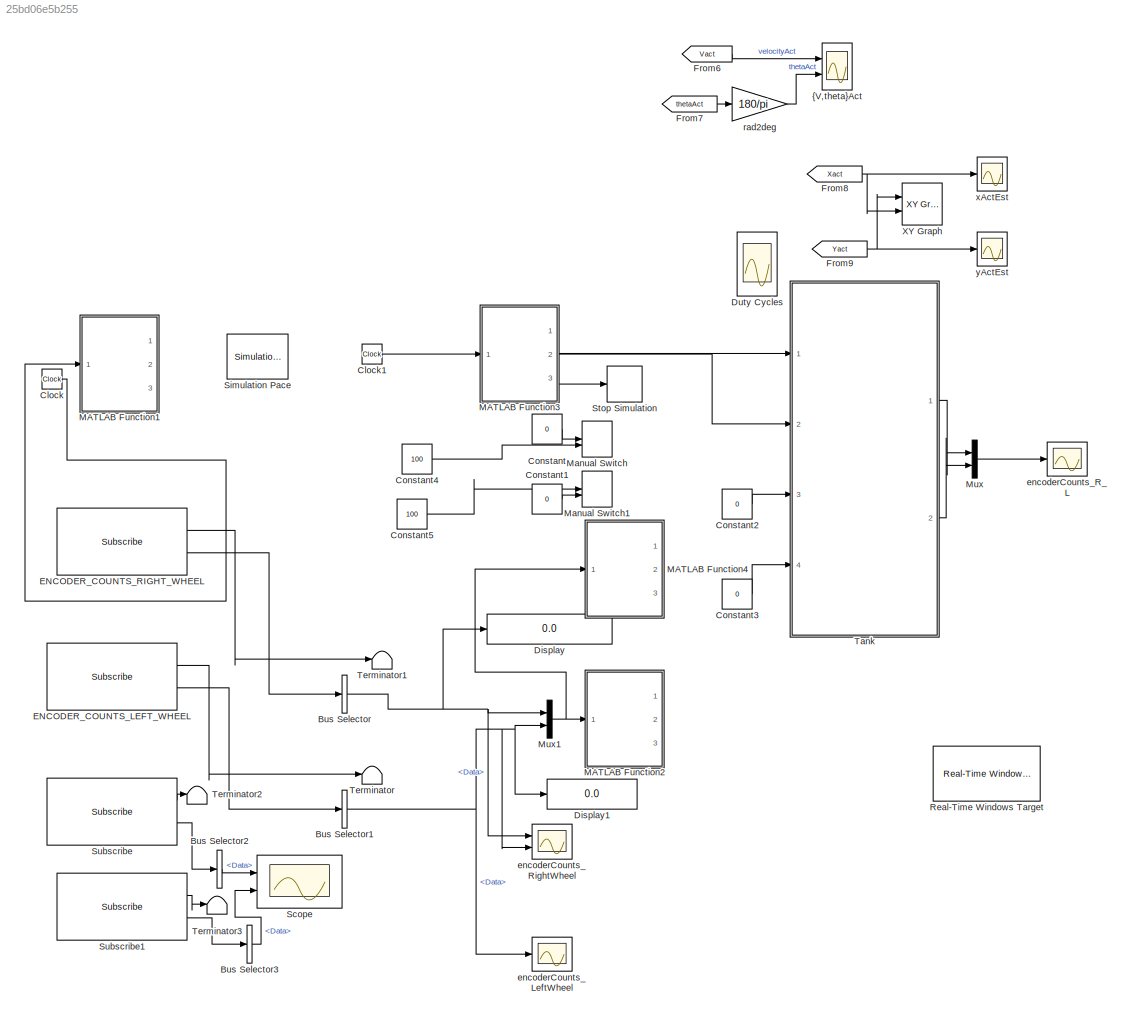
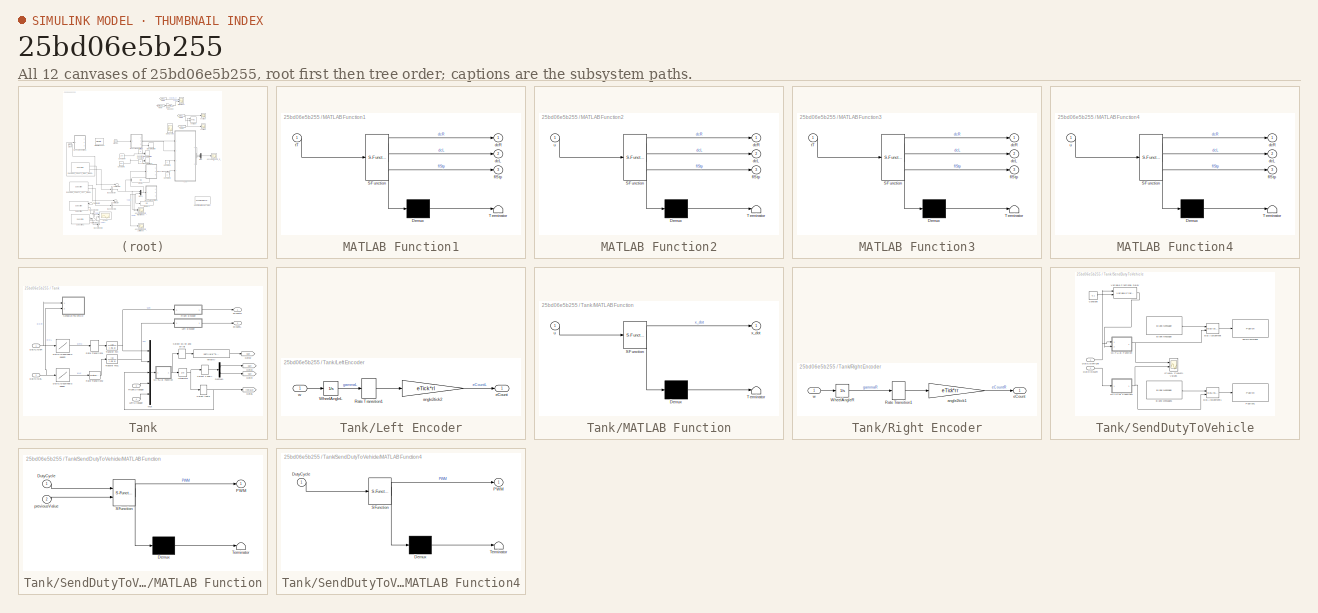
[diagram: thumbnail index - all 12 canvases of the model, root first then tree order]
MODEL slx_25bd06e5b255
KIND model
CONFIG AbsTol = auto
CONFIG EnableMultiTasking = on
CONFIG FixedStep = 0.1
CONFIG InitFcn = parameterVehicle
CONFIG MaxStep = auto
CONFIG MinStep = auto
CONFIG PreLoadFcn = RTWConfigurationCB('preloadfcn', bdroot);
CONFIG RelTol = 1e-3
CONFIG SampleTimeConstraint = Unconstrained
CONFIG Solver = ode45
CONFIG SolverName = ode45
CONFIG StartTime = 0.0
CONFIG StopFcn = myStopFcnExperiment(xAct,yAct)
CONFIG StopTime = inf
BLOCK [BusSelector] Bus Selector
  OutputAsBus = off
  OutputSignals = Data
  Ports = [1, 1]
BLOCK [BusSelector] Bus Selector1
  OutputAsBus = off
  OutputSignals = Data
  Ports = [1, 1]
BLOCK [BusSelector] Bus Selector2
  OutputAsBus = off
  OutputSignals = Data
  Ports = [1, 1]
BLOCK [BusSelector] Bus Selector3
  OutputAsBus = off
  OutputSignals = Data
  Ports = [1, 1]
BLOCK [Clock] Clock
  DisplayTime = on
BLOCK [Clock] Clock1
BLOCK [Constant] Constant
  Value = 0
BLOCK [Constant] Constant1
  Value = 0
BLOCK [Constant] Constant2
  Value = 0
BLOCK [Constant] Constant3
  Value = 0
BLOCK [Constant] Constant4
  Value = 100
BLOCK [Constant] Constant5
  Value = 100
BLOCK [Display] Display
  Decimation = 1
  Format = long
  Ports = [1]
BLOCK [Display] Display1
  Decimation = 1
  Format = long
  Ports = [1]
BLOCK [Scope] Duty Cycles
  Floating = off
  NumInputPorts = 2
  Ports = [2]
  ScopeSpecificationString = Simulink.scopes.TimeScopeBlockCfg('CurrentConfiguration', extmgr.ConfigurationSet(extmgr.Configuration('Core','General UI',true),extmgr.Configuration('Core','Source UI',true),extmgr.Configuration('Sources','WiredSimulink',true,'DataLoggingVariableName','ScopeData2','DataLoggingSaveFormat','StructureWithTime','DataLoggingDecimation','1','DataLoggingDecimateData',true),extmgr.Configuration('Visuals'...<+2359ch>
BLOCK [Reference] ENCODER_COUNTS_LEFT_WHEEL  REF=robotlib/Subscribe
  Ports = [0, 2]
  SourceBlock = robotlib/Subscribe
  SourceLibraryInfo = This block requires Robotics System Toolbox
  SourceProductBaseCode = RO
  SourceProductName = Robotics System Toolbox
  SourceType = ROS Subscribe
BLOCK [Reference] ENCODER_COUNTS_RIGHT_WHEEL  REF=robotlib/Subscribe
  Ports = [0, 2]
  SourceBlock = robotlib/Subscribe
  SourceLibraryInfo = This block requires Robotics System Toolbox
  SourceProductBaseCode = RO
  SourceProductName = Robotics System Toolbox
  SourceType = ROS Subscribe
BLOCK [From] From6
  GotoTag = Vact
  TagVisibility = global
BLOCK [From] From7
  GotoTag = thetaAct
  TagVisibility = global
BLOCK [From] From8
  GotoTag = Xact
  TagVisibility = global
BLOCK [From] From9
  GotoTag = Yact
  TagVisibility = global
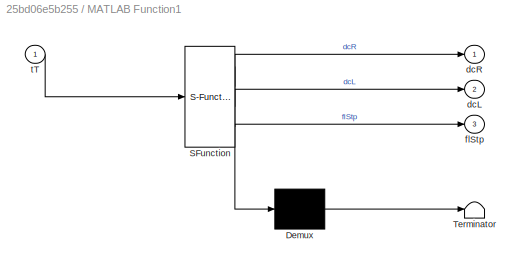
BLOCK [SubSystem] MATLAB Function1
  ErrorFcn = Stateflow.Translate.translate
  PermitHierarchicalResolution = ExplicitOnly
  Ports = [1, 3]
  RequestExecContextInheritance = off
  SFBlockType = MATLAB Function
  TreatAsAtomicUnit = on
BLOCK [Demux] MATLAB Function1/ Demux 
  Outputs = 1
  Ports = [1, 1]
BLOCK [S-Function] MATLAB Function1/ SFunction 
  EnableBusSupport = on
  FunctionName = sf_sfun
  PortCounts = [1 4]
  Ports = [1, 4]
  SFcnIsStateOwnerBlock = off
  SFunctionDeploymentMode = off
  Tag = Stateflow S-Function temp_vehicle 3
BLOCK [Terminator] MATLAB Function1/ Terminator 
BLOCK [Outport] MATLAB Function1/dcL
  IconDisplay = Port number
  Port = 2
BLOCK [Outport] MATLAB Function1/dcR
  IconDisplay = Port number
BLOCK [Outport] MATLAB Function1/flStp
  IconDisplay = Port number
  Port = 3
BLOCK [Inport] MATLAB Function1/tT
  IconDisplay = Port number
BLOCK [SubSystem] MATLAB Function2
  ErrorFcn = Stateflow.Translate.translate
  PermitHierarchicalResolution = ExplicitOnly
  Ports = [1, 3]
  RequestExecContextInheritance = off
  SFBlockType = MATLAB Function
  TreatAsAtomicUnit = on
BLOCK [Demux] MATLAB Function2/ Demux 
  Outputs = 1
  Ports = [1, 1]
BLOCK [S-Function] MATLAB Function2/ SFunction 
  EnableBusSupport = on
  FunctionName = sf_sfun
  PortCounts = [1 4]
  Ports = [1, 4]
  SFcnIsStateOwnerBlock = off
  SFunctionDeploymentMode = off
  Tag = Stateflow S-Function temp_vehicle 4
BLOCK [Terminator] MATLAB Function2/ Terminator 
BLOCK [Outport] MATLAB Function2/dcL
  IconDisplay = Port number
  Port = 2
BLOCK [Outport] MATLAB Function2/dcR
  IconDisplay = Port number
BLOCK [Outport] MATLAB Function2/flStp
  IconDisplay = Port number
  Port = 3
BLOCK [Inport] MATLAB Function2/u
  IconDisplay = Port number
BLOCK [SubSystem] MATLAB Function3
  ErrorFcn = Stateflow.Translate.translate
  PermitHierarchicalResolution = ExplicitOnly
  Ports = [1, 3]
  RequestExecContextInheritance = off
  SFBlockType = MATLAB Function
  TreatAsAtomicUnit = on
BLOCK [Demux] MATLAB Function3/ Demux 
  Outputs = 1
  Ports = [1, 1]
BLOCK [S-Function] MATLAB Function3/ SFunction 
  EnableBusSupport = on
  FunctionName = sf_sfun
  PortCounts = [1 4]
  Ports = [1, 4]
  SFcnIsStateOwnerBlock = off
  SFunctionDeploymentMode = off
  Tag = Stateflow S-Function temp_vehicle 2
BLOCK [Terminator] MATLAB Function3/ Terminator 
BLOCK [Outport] MATLAB Function3/dcL
  IconDisplay = Port number
  Port = 2
BLOCK [Outport] MATLAB Function3/dcR
  IconDisplay = Port number
BLOCK [Outport] MATLAB Function3/flStp
  IconDisplay = Port number
  Port = 3
BLOCK [Inport] MATLAB Function3/tT
  IconDisplay = Port number
BLOCK [SubSystem] MATLAB Function4
  ErrorFcn = Stateflow.Translate.translate
  PermitHierarchicalResolution = ExplicitOnly
  Ports = [1, 3]
  RequestExecContextInheritance = off
  SFBlockType = MATLAB Function
  TreatAsAtomicUnit = on
BLOCK [Demux] MATLAB Function4/ Demux 
  Outputs = 1
  Ports = [1, 1]
BLOCK [S-Function] MATLAB Function4/ SFunction 
  EnableBusSupport = on
  FunctionName = sf_sfun
  PortCounts = [1 4]
  Ports = [1, 4]
  SFcnIsStateOwnerBlock = off
  SFunctionDeploymentMode = off
  Tag = Stateflow S-Function temp_vehicle 5
BLOCK [Terminator] MATLAB Function4/ Terminator 
BLOCK [Outport] MATLAB Function4/dcL
  IconDisplay = Port number
  Port = 2
BLOCK [Outport] MATLAB Function4/dcR
  IconDisplay = Port number
BLOCK [Outport] MATLAB Function4/flStp
  IconDisplay = Port number
  Port = 3
BLOCK [Inport] MATLAB Function4/u
  IconDisplay = Port number
BLOCK [ManualSwitch] Manual Switch
  CurrentSetting = 0
BLOCK [ManualSwitch] Manual Switch1
BLOCK [Mux] Mux
  DisplayOption = bar
  Inputs = 2
  Ports = [2, 1]
BLOCK [Mux] Mux1
  DisplayOption = bar
  Inputs = 2
  Ports = [2, 1]
BLOCK [Reference] Real-Time Windows Target  REF=rtwlib/Real-Time Windows Target
  Ports = []
  SourceBlock = rtwlib/Real-Time Windows Target
  SourceProductBaseCode = RT
  SourceProductName = Simulink Coder
  SourceType = Real-Time Windows Target
BLOCK [Scope] Scope
  Floating = off
  NumInputPorts = 2
  Ports = [2]
  ScopeSpecificationString = Simulink.scopes.TimeScopeBlockCfg('CurrentConfiguration', extmgr.ConfigurationSet(extmgr.Configuration('Core','General UI',true),extmgr.Configuration('Core','Source UI',true),extmgr.Configuration('Sources','WiredSimulink',true,'DataLoggingVariableName','ScopeData1'),extmgr.Configuration('Visuals','Time Domain',true,'InputProcessing','FrameProcessing','SerializedDisplays',{struct('MinYLimReal','-31...<+1433ch>
BLOCK [Reference] Simulation Pace  REF=aerolibanimutils/Simulation Pace
  AttributesFormatString = %<SleepMode>\n%<SimulationPace> sec/sec
  Ports = []
  SourceBlock = aerolibanimutils/Simulation Pace
  SourceProductBaseCode = AE
  SourceProductName = Aerospace Blockset
  SourceType = Simulation Pace
BLOCK [Stop] Stop Simulation
BLOCK [Reference] Subscribe  REF=robotlib/Subscribe
  Ports = [0, 2]
  SourceBlock = robotlib/Subscribe
  SourceLibraryInfo = This block requires Robotics System Toolbox
  SourceProductBaseCode = RO
  SourceProductName = Robotics System Toolbox
  SourceType = ROS Subscribe
BLOCK [Reference] Subscribe1  REF=robotlib/Subscribe
  Ports = [0, 2]
  SourceBlock = robotlib/Subscribe
  SourceLibraryInfo = This block requires Robotics System Toolbox
  SourceProductBaseCode = RO
  SourceProductName = Robotics System Toolbox
  SourceType = ROS Subscribe
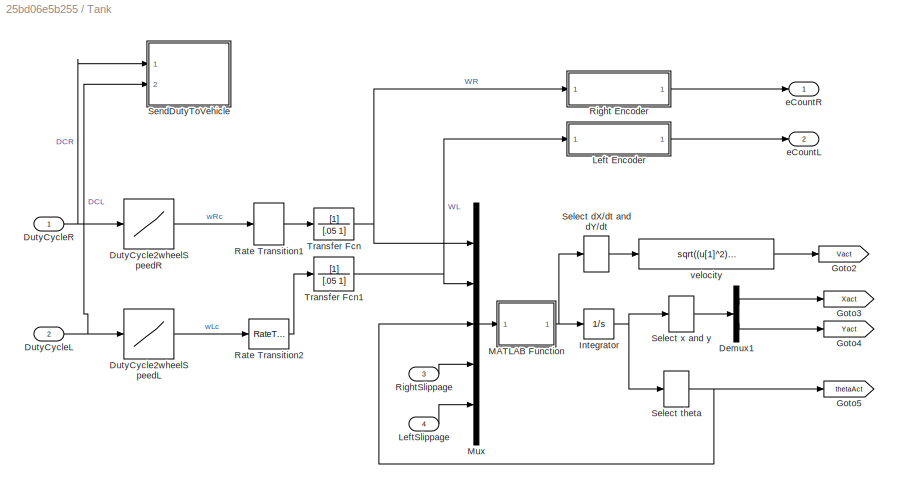
BLOCK [SubSystem] Tank
  Ports = [4, 2]
  RequestExecContextInheritance = off
BLOCK [Demux] Tank/Demux1
  DisplayOption = bar
  Outputs = 2
  Ports = [1, 2]
BLOCK [Lookup] Tank/DutyCycle2wheelSpeedL
  InputValues = dcArray
  LookUpMeth = Interpolation-Use End Values
  SaturateOnIntegerOverflow = off
  Table = wArray
BLOCK [Lookup] Tank/DutyCycle2wheelSpeedR
  InputValues = dcArray
  LookUpMeth = Interpolation-Use End Values
  SaturateOnIntegerOverflow = off
  Table = wArray
BLOCK [Inport] Tank/DutyCycleL
  IconDisplay = Port number
  Port = 2
BLOCK [Inport] Tank/DutyCycleR
  IconDisplay = Port number
BLOCK [Goto] Tank/Goto2
  GotoTag = Vact
  TagVisibility = global
BLOCK [Goto] Tank/Goto3
  GotoTag = Xact
  TagVisibility = global
BLOCK [Goto] Tank/Goto4
  GotoTag = Yact
  TagVisibility = global
BLOCK [Goto] Tank/Goto5
  GotoTag = thetaAct
  TagVisibility = global
BLOCK [Integrator] Tank/Integrator
  InitialCondition = [xIC; yIC ; thetaIC]
  Ports = [1, 1]
BLOCK [SubSystem] Tank/Left Encoder
  Ports = [1, 1]
  RequestExecContextInheritance = off
BLOCK [RateTransition] Tank/Left Encoder/Rate Transition1
BLOCK [Integrator] Tank/Left Encoder/WheelAngleL
  Ports = [1, 1]
BLOCK [Gain] Tank/Left Encoder/angle2tick2
  Gain = eTick*rl
  OutDataTypeStr = int16
  ParamDataTypeStr = Inherit: Inherit via internal rule
  SampleTime = TsampleEncoder
  SaturateOnIntegerOverflow = off
BLOCK [Outport] Tank/Left Encoder/eCount
  IconDisplay = Port number
BLOCK [Inport] Tank/Left Encoder/w
  IconDisplay = Port number
BLOCK [Inport] Tank/LeftSlippage
  IconDisplay = Port number
  Port = 4
BLOCK [SubSystem] Tank/MATLAB Function
  ErrorFcn = Stateflow.Translate.translate
  PermitHierarchicalResolution = ExplicitOnly
  Ports = [1, 1]
  RequestExecContextInheritance = off
  SFBlockType = MATLAB Function
  TreatAsAtomicUnit = on
BLOCK [Demux] Tank/MATLAB Function/ Demux 
  Outputs = 1
  Ports = [1, 1]
BLOCK [S-Function] Tank/MATLAB Function/ SFunction 
  EnableBusSupport = on
  FunctionName = sf_sfun
  Parameters = b,rl,rr
  PortCounts = [1 2]
  Ports = [1, 2]
  SFcnIsStateOwnerBlock = off
  SFunctionDeploymentMode = off
  Tag = Stateflow S-Function temp_vehicle 1
BLOCK [Terminator] Tank/MATLAB Function/ Terminator 
BLOCK [Inport] Tank/MATLAB Function/u
  IconDisplay = Port number
BLOCK [Outport] Tank/MATLAB Function/x_dot
  IconDisplay = Port number
BLOCK [Mux] Tank/Mux
  DisplayOption = bar
  Inputs = 5
  Ports = [5, 1]
BLOCK [RateTransition] Tank/Rate Transition1
BLOCK [RateTransition] Tank/Rate Transition2
BLOCK [SubSystem] Tank/Right Encoder
  Ports = [1, 1]
  RequestExecContextInheritance = off
BLOCK [RateTransition] Tank/Right Encoder/Rate Transition1
BLOCK [Integrator] Tank/Right Encoder/WheelAngleR
  Ports = [1, 1]
BLOCK [Gain] Tank/Right Encoder/angle2tick1
  Gain = eTick*rr
  OutDataTypeStr = int16
  ParamDataTypeStr = Inherit: Inherit via internal rule
  SampleTime = TsampleEncoder
  SaturateOnIntegerOverflow = off
BLOCK [Outport] Tank/Right Encoder/eCount
  IconDisplay = Port number
BLOCK [Inport] Tank/Right Encoder/w
  IconDisplay = Port number
BLOCK [Inport] Tank/RightSlippage
  IconDisplay = Port number
  Port = 3
BLOCK [Selector] Tank/Select dX//dt and dY//dt
  IndexOptions = Index vector (dialog)
  Indices = [1 2]
  InputPortWidth = 3
  OutputSizes = 1
  Ports = [1, 1]
BLOCK [Selector] Tank/Select theta
  IndexOptions = Index vector (dialog)
  Indices = 3
  InputPortWidth = 3
  OutputSizes = 1
  Ports = [1, 1]
BLOCK [Selector] Tank/Select x and y
  IndexOptions = Index vector (dialog)
  Indices = [1 2]
  InputPortWidth = 3
  OutputSizes = 1
  Ports = [1, 1]
BLOCK [SubSystem] Tank/SendDutyToVehicle
  Ports = [2]
  RequestExecContextInheritance = off
BLOCK [Reference] Tank/SendDutyToVehicle/Blank Message  REF=robotlib/Blank Message
  Ports = [0, 1]
  SourceBlock = robotlib/Blank Message
  SourceLibraryInfo = This block requires Robotics System Toolbox
  SourceProductBaseCode = RO
  SourceProductName = Robotics System Toolbox
  SourceType = ROS Blank Message
BLOCK [Reference] Tank/SendDutyToVehicle/Blank Message1  REF=robotlib/Blank Message
  Ports = [0, 1]
  SourceBlock = robotlib/Blank Message
  SourceLibraryInfo = This block requires Robotics System Toolbox
  SourceProductBaseCode = RO
  SourceProductName = Robotics System Toolbox
  SourceType = ROS Blank Message
BLOCK [BusAssignment] Tank/SendDutyToVehicle/Bus Assignment
  AssignedSignals = Data
  Ports = [2, 1]
BLOCK [BusAssignment] Tank/SendDutyToVehicle/Bus Assignment1
  AssignedSignals = Data
  Ports = [2, 1]
BLOCK [Constant] Tank/SendDutyToVehicle/Constant
  Value = 0.1
BLOCK [Inport] Tank/SendDutyToVehicle/DutyCycleLeft
  IconDisplay = Port number
  Port = 2
BLOCK [Inport] Tank/SendDutyToVehicle/DutyCycleRight
  IconDisplay = Port number
BLOCK [SubSystem] Tank/SendDutyToVehicle/MATLAB Function
  ErrorFcn = Stateflow.Translate.translate
  PermitHierarchicalResolution = ExplicitOnly
  Ports = [2, 1]
  RequestExecContextInheritance = off
  SFBlockType = MATLAB Function
  TreatAsAtomicUnit = on
BLOCK [Demux] Tank/SendDutyToVehicle/MATLAB Function/ Demux 
  Outputs = 1
  Ports = [1, 1]
BLOCK [S-Function] Tank/SendDutyToVehicle/MATLAB Function/ SFunction 
  EnableBusSupport = on
  FunctionName = sf_sfun
  PortCounts = [2 2]
  Ports = [2, 2]
  SFcnIsStateOwnerBlock = off
  SFunctionDeploymentMode = off
  Tag = Stateflow S-Function temp_vehicle 7
BLOCK [Terminator] Tank/SendDutyToVehicle/MATLAB Function/ Terminator 
BLOCK [Inport] Tank/SendDutyToVehicle/MATLAB Function/DutyCycle
  IconDisplay = Port number
BLOCK [Outport] Tank/SendDutyToVehicle/MATLAB Function/PWM
  IconDisplay = Port number
BLOCK [Inport] Tank/SendDutyToVehicle/MATLAB Function/previousValue
  IconDisplay = Port number
  Port = 2
BLOCK [SubSystem] Tank/SendDutyToVehicle/MATLAB Function4
  ErrorFcn = Stateflow.Translate.translate
  PermitHierarchicalResolution = ExplicitOnly
  Ports = [1, 1]
  RequestExecContextInheritance = off
  SFBlockType = MATLAB Function
  TreatAsAtomicUnit = on
BLOCK [Demux] Tank/SendDutyToVehicle/MATLAB Function4/ Demux 
  Outputs = 1
  Ports = [1, 1]
BLOCK [S-Function] Tank/SendDutyToVehicle/MATLAB Function4/ SFunction 
  EnableBusSupport = on
  FunctionName = sf_sfun
  PortCounts = [1 2]
  Ports = [1, 2]
  SFcnIsStateOwnerBlock = off
  SFunctionDeploymentMode = off
  Tag = Stateflow S-Function temp_vehicle 8
BLOCK [Terminator] Tank/SendDutyToVehicle/MATLAB Function4/ Terminator 
BLOCK [Inport] Tank/SendDutyToVehicle/MATLAB Function4/DutyCycle
  IconDisplay = Port number
BLOCK [Outport] Tank/SendDutyToVehicle/MATLAB Function4/PWM
  IconDisplay = Port number
BLOCK [Reference] Tank/SendDutyToVehicle/Publish1  REF=robotlib/Publish
  Ports = [1]
  SourceBlock = robotlib/Publish
  SourceLibraryInfo = This block requires Robotics System Toolbox
  SourceProductBaseCode = RO
  SourceProductName = Robotics System Toolbox
  SourceType = ROS Publish
BLOCK [Reference] Tank/SendDutyToVehicle/Variable Fractional Delay  REF=dspsigops/Variable
Fractional Delay
  Ports = [2, 1]
  SourceBlock = dspsigops/Variable\nFractional Delay
  SourceProductBaseCode = DS
  SourceProductName = DSP System Toolbox
  SourceType = Variable Fractional Delay
  UserDataPersistent = on
BLOCK [Reference] Tank/SendDutyToVehicle/pwmCommand  REF=robotlib/Publish
  Ports = [1]
  SourceBlock = robotlib/Publish
  SourceLibraryInfo = This block requires Robotics System Toolbox
  SourceProductBaseCode = RO
  SourceProductName = Robotics System Toolbox
  SourceType = ROS Publish
BLOCK [Scope] Tank/SendDutyToVehicle/{PWML, PWMR} Values
  Floating = off
  NumInputPorts = 2
  Ports = [2]
  ScopeSpecificationString = Simulink.scopes.TimeScopeBlockCfg('CurrentConfiguration', extmgr.ConfigurationSet(extmgr.Configuration('Core','General UI',true),extmgr.Configuration('Core','Source UI',true),extmgr.Configuration('Sources','WiredSimulink',true,'DataLoggingVariableName','ScopeData3','DataLoggingSaveFormat','StructureWithTime','DataLoggingDecimation','1','DataLoggingDecimateData',true),extmgr.Configuration('Visuals'...<+2320ch>
BLOCK [TransferFcn] Tank/Transfer Fcn
  Denominator = [.05 1]
BLOCK [TransferFcn] Tank/Transfer Fcn1
  Denominator = [.05 1]
BLOCK [Outport] Tank/eCountL
  IconDisplay = Port number
  Port = 2
BLOCK [Outport] Tank/eCountR
  IconDisplay = Port number
BLOCK [Fcn] Tank/velocity
  Expr = sqrt((u[1]^2)+(u[2]^2))
BLOCK [Terminator] Terminator
BLOCK [Terminator] Terminator1
BLOCK [Terminator] Terminator2
BLOCK [Terminator] Terminator3
BLOCK [Reference] XY Graph  REF=simulink/Sinks/XY Graph
  Ports = [2]
  SourceBlock = simulink/Sinks/XY Graph
  SourceProductBaseCode = SL
  SourceProductName = Simulink
  SourceType = XY scope.
BLOCK [Scope] encoderCounts_LeftWheel
  Floating = off
  NumInputPorts = 1
  Ports = [1]
  ScopeSpecificationString = Simulink.scopes.TimeScopeBlockCfg('CurrentConfiguration', extmgr.ConfigurationSet(extmgr.Configuration('Core','General UI',true),extmgr.Configuration('Core','Source UI',true),extmgr.Configuration('Sources','WiredSimulink',true,'DataLogging',true,'DataLoggingVariableName','ScopeData1','DataLoggingSaveFormat','StructureWithTime','DataLoggingDecimation','1','DataLoggingDecimateData',true),extmgr.Conf...<+1758ch>
BLOCK [Scope] encoderCounts_R_L
  Floating = off
  NumInputPorts = 1
  Ports = [1]
  ScopeSpecificationString = Simulink.scopes.TimeScopeBlockCfg('CurrentConfiguration', extmgr.ConfigurationSet(extmgr.Configuration('Core','General UI',true),extmgr.Configuration('Core','Source UI',true),extmgr.Configuration('Sources','WiredSimulink',true,'DataLogging',true,'DataLoggingVariableName','eCountsRL','DataLoggingSaveFormat','StructureWithTime','DataLoggingDecimation','1','DataLoggingDecimateData',true),extmgr.Confi...<+1792ch>
BLOCK [Scope] encoderCounts_RightWheel
  Floating = off
  NumInputPorts = 2
  Ports = [2]
  ScopeSpecificationString = Simulink.scopes.TimeScopeBlockCfg('CurrentConfiguration', extmgr.ConfigurationSet(extmgr.Configuration('Core','General UI',true),extmgr.Configuration('Core','Source UI',true),extmgr.Configuration('Sources','WiredSimulink',true,'DataLogging',true,'DataLoggingVariableName','ScopeData2','DataLoggingSaveFormat','StructureWithTime','DataLoggingDecimation','1','DataLoggingDecimateData',true),extmgr.Conf...<+2146ch>
BLOCK [Gain] rad2deg
  Gain = 180/pi
  OutDataTypeStr = Inherit: Inherit via internal rule
  ParamDataTypeStr = Inherit: Inherit via internal rule
  SaturateOnIntegerOverflow = off
BLOCK [Scope] xActEst
  Floating = off
  NumInputPorts = 1
  Ports = [1]
  ScopeSpecificationString = Simulink.scopes.TimeScopeBlockCfg('CurrentConfiguration', extmgr.ConfigurationSet(extmgr.Configuration('Core','General UI',true),extmgr.Configuration('Core','Source UI',true),extmgr.Configuration('Sources','WiredSimulink',true,'DataLogging',true,'DataLoggingVariableName','xAct','DataLoggingSaveFormat','StructureWithTime','DataLoggingDecimation','1','DataLoggingDecimateData',true),extmgr.Configurat...<+1754ch>
BLOCK [Scope] yActEst
  Floating = off
  NumInputPorts = 1
  Ports = [1]
  ScopeSpecificationString = C++SS(StrPVP('Location','[606, 637, 1467, 885]'),StrPVP('Open','off'),MxPVP('AxesTitles',53,'struct(''axes1'',''%<SignalLabel>'')'),MxPVP('ScopeGraphics',56,'struct(''FigureColor'',''[0.5 0.5 0.5]'',''AxesColor'',''[0 0 0]'',''AxesTickColor'',''[1 1 1]'',''LineColors'',''[1 1 0;1 0 1;0 1 1;1 0 0;0 1 0;0 0 1]'',''LineStyles'',''-|-|-|-|-|-'',''LineWidths'',''[0.5 0.5 0.5 0.5 0.5 0.5]'',''MarkerStyl...<+316ch>
BLOCK [Scope] {V,theta}Act
  Floating = off
  NumInputPorts = 2
  Ports = [2]
  ScopeSpecificationString = Simulink.scopes.TimeScopeBlockCfg('CurrentConfiguration', extmgr.ConfigurationSet(extmgr.Configuration('Core','General UI',true),extmgr.Configuration('Core','Source UI',true),extmgr.Configuration('Sources','WiredSimulink',true,'DataLoggingVariableName','ScopeData1','DataLoggingSaveFormat','StructureWithTime','DataLoggingDecimation','1','DataLoggingDecimateData',true),extmgr.Configuration('Visuals'...<+2378ch>
NET Bus Selector1:1 -> Display1:1, Mux1:2, encoderCounts_LeftWheel:1, encoderCounts_RightWheel:2
LINE Bus Selector2:1 -> Scope:1
LINE Bus Selector3:1 -> Scope:2
NET Bus Selector:1 -> Display:1, Mux1:1, encoderCounts_RightWheel:1
LINE Clock1:1 -> MATLAB Function3:1
LINE Clock:1 -> MATLAB Function1:1
LINE Constant1:1 -> Manual Switch1:2
LINE Constant2:1 -> Tank:3
LINE Constant3:1 -> Tank:4
LINE Constant4:1 -> Manual Switch:2
LINE Constant5:1 -> Manual Switch1:1
LINE Constant:1 -> Manual Switch:1
LINE ENCODER_COUNTS_LEFT_WHEEL:1 -> Terminator:1
LINE ENCODER_COUNTS_LEFT_WHEEL:2 -> Bus Selector1:1
LINE ENCODER_COUNTS_RIGHT_WHEEL:1 -> Terminator1:1
LINE ENCODER_COUNTS_RIGHT_WHEEL:2 -> Bus Selector:1
LINE From6:1 -> {V,theta}Act:1
LINE From7:1 -> rad2deg:1
NET From8:1 -> XY Graph:2, xActEst:1
NET From9:1 -> XY Graph:1, yActEst:1
LINE MATLAB Function3:1 -> Tank:1
LINE MATLAB Function3:2 -> Tank:2
LINE MATLAB Function3:3 -> Stop Simulation:1
NET Mux1:1 -> MATLAB Function2:1, MATLAB Function4:1
LINE Mux:1 -> encoderCounts_R_L:1
LINE Subscribe1:1 -> Terminator3:1
LINE Subscribe1:2 -> Bus Selector3:1
LINE Subscribe:1 -> Terminator2:1
LINE Subscribe:2 -> Bus Selector2:1
LINE Tank/Demux1:1 -> Tank/Goto3:1
LINE Tank/Demux1:2 -> Tank/Goto4:1
LINE Tank/DutyCycle2wheelSpeedL:1 -> Tank/Rate Transition2:1
LINE Tank/DutyCycle2wheelSpeedR:1 -> Tank/Rate Transition1:1
NET Tank/DutyCycleL:1 -> Tank/DutyCycle2wheelSpeedL:1, Tank/SendDutyToVehicle:2
NET Tank/DutyCycleR:1 -> Tank/DutyCycle2wheelSpeedR:1, Tank/SendDutyToVehicle:1
NET Tank/Integrator:1 -> Tank/Select theta:1, Tank/Select x and y:1
LINE Tank/Left Encoder/Rate Transition1:1 -> Tank/Left Encoder/angle2tick2:1
LINE Tank/Left Encoder/WheelAngleL:1 -> Tank/Left Encoder/Rate Transition1:1
LINE Tank/Left Encoder/angle2tick2:1 -> Tank/Left Encoder/eCount:1
LINE Tank/Left Encoder/w:1 -> Tank/Left Encoder/WheelAngleL:1
LINE Tank/Left Encoder:1 -> Tank/eCountL:1
LINE Tank/LeftSlippage:1 -> Tank/Mux:5
NET Tank/MATLAB Function:1 -> Tank/Integrator:1, Tank/Select dX//dt and dY//dt:1
LINE Tank/Mux:1 -> Tank/MATLAB Function:1
LINE Tank/Rate Transition1:1 -> Tank/Transfer Fcn:1
LINE Tank/Rate Transition2:1 -> Tank/Transfer Fcn1:1
LINE Tank/Right Encoder/Rate Transition1:1 -> Tank/Right Encoder/angle2tick1:1
LINE Tank/Right Encoder/WheelAngleR:1 -> Tank/Right Encoder/Rate Transition1:1
LINE Tank/Right Encoder/angle2tick1:1 -> Tank/Right Encoder/eCount:1
LINE Tank/Right Encoder/w:1 -> Tank/Right Encoder/WheelAngleR:1
LINE Tank/Right Encoder:1 -> Tank/eCountR:1
LINE Tank/RightSlippage:1 -> Tank/Mux:4
LINE Tank/Select dX//dt and dY//dt:1 -> Tank/velocity:1
NET Tank/Select theta:1 -> Tank/Goto5:1, Tank/Mux:3
LINE Tank/Select x and y:1 -> Tank/Demux1:1
LINE Tank/SendDutyToVehicle/Blank Message1:1 -> Tank/SendDutyToVehicle/Bus Assignment1:1
LINE Tank/SendDutyToVehicle/Blank Message:1 -> Tank/SendDutyToVehicle/Bus Assignment:1
LINE Tank/SendDutyToVehicle/Bus Assignment1:1 -> Tank/SendDutyToVehicle/Publish1:1
LINE Tank/SendDutyToVehicle/Bus Assignment:1 -> Tank/SendDutyToVehicle/pwmCommand:1
LINE Tank/SendDutyToVehicle/Constant:1 -> Tank/SendDutyToVehicle/Variable Fractional Delay:2
LINE Tank/SendDutyToVehicle/DutyCycleLeft:1 -> Tank/SendDutyToVehicle/MATLAB Function4:1
NET Tank/SendDutyToVehicle/DutyCycleRight:1 -> Tank/SendDutyToVehicle/MATLAB Function:1, Tank/SendDutyToVehicle/Variable Fractional Delay:1
NET Tank/SendDutyToVehicle/MATLAB Function4:1 -> Tank/SendDutyToVehicle/Bus Assignment1:2, Tank/SendDutyToVehicle/{PWML, PWMR} Values:2
NET Tank/SendDutyToVehicle/MATLAB Function:1 -> Tank/SendDutyToVehicle/Bus Assignment:2, Tank/SendDutyToVehicle/{PWML, PWMR} Values:1
LINE Tank/SendDutyToVehicle/Variable Fractional Delay:1 -> Tank/SendDutyToVehicle/MATLAB Function:2
NET Tank/Transfer Fcn1:1 -> Tank/Left Encoder:1, Tank/Mux:2
NET Tank/Transfer Fcn:1 -> Tank/Mux:1, Tank/Right Encoder:1
LINE Tank/velocity:1 -> Tank/Goto2:1
LINE Tank:1 -> Mux:1
LINE Tank:2 -> Mux:2
LINE rad2deg:1 -> {V,theta}Act:2
note: NET lines group one-source signal fan-out (src -> all destinations, sorted); 1:1 wires keep LINE
CHART Tank/MATLAB Function states=1 transitions=1
  STATE_LABEL 'eML_blk_kernel()'
  STATE_LABEL 'SCRIPT:\nfunction x_dot = fcn(u,b,rr,rl)\n%#codegen\n\nwr = u(1);\nwl = u(2);\ntheta = u(3);\nsr = u(4);\nsl = u(5);\nx_dot = [((1-sl)*rl*wl + (1-sr)*rr*wr)*cos(theta)/2;\n         ((1-sl)*rl*wl + (1-sr)*rr*wr)*sin(theta)/2;\n         ((1-sl)*rl*wl - (1-sr)*rr*wr)/b];'
CHART MATLAB Function3 states=1 transitions=1
  STATE_LABEL 'eML_blk_kernel()'
  STATE_LABEL 'SCRIPT:\nfunction [dcR,dcL,flStp] = lookUptableEst(tT)\n%#codegen\n\ndcR = 0;\ndcL = 0;\nflStp = 1;\n\nif tT < 2\n    dcR = 100;\n    dcL = 100;    \n    flStp = 0;    \nend\n'
CHART MATLAB Function1 states=1 transitions=1
  STATE_LABEL 'eML_blk_kernel()'
  STATE_LABEL 'SCRIPT:\nfunction [dcR,dcL,flStp] = bTest(tT)\n%#codegen\n\ndcR = 90;\ndcL = 90;\nflStp = 0;\n\n% if tT >= 5 && tT < 7\n%     dcR = 60;\n%     dcL = 30;\n%     if tT == 3\n%         disp(eL)\n%         disp(eR)\n%     end\n%     \n% if tT >= 4\n%     dcR = 0;\n%     dcL = 0;\n%     flStp = 1;    \nend\n'
CHART MATLAB Function2 states=1 transitions=1
  STATE_LABEL 'eML_blk_kernel()'
  STATE_LABEL 'SCRIPT:\nfunction [dcR,dcL,flStp] = eTickTest(u)\n%#codegen\n\ndcR = 0;\ndcL = 0;\nflStp = 1;\nif u(1) < 4384 && u(2) < 4384\n    dcR = 30;\n    dcL = 30;\nelse\n    dcR = 0;\n    dcL = 0;\n% \n% if u(2) < 300\n%     dcL = 30;\n% else\n%     dcL = 0;\nend\n\n% %%%\n% if u(1) > 0\n%     dcR = -30;\n%     %dcL = -30;\n%     flStp = 0;\n% elseif u(1) < 0\n%     dcR = 30;\n% else \n%     dcR = 0;\n%     %dcL = 0;\n% end\n% if u(2) ...<+103ch>'
CHART MATLAB Function4 states=1 transitions=1
  STATE_LABEL 'eML_blk_kernel()'
  STATE_LABEL 'SCRIPT:\nfunction [dcR,dcL,flStp] = eTickTest(u)\n%#codegen\n\ndcR = 0;\ndcL = 0;\nflStp = 1;\nif u(1) < 5000 && u(2) < 5000\n    dcR = 100;\n    dcL = 100;\nelse\n    dcR = 0;\n    dcL = 0;\n% \n% if u(2) < 300\n%     dcL = 30;\n% else\n%     dcL = 0;\nend\n\n% %%%\n% if u(1) > 0\n%     dcR = -30;\n%     %dcL = -30;\n%     flStp = 0;\n% elseif u(1) < 0\n%     dcR = 30;\n% else \n%     dcR = 0;\n%     %dcL = 0;\n% end\n% if u(2...<+105ch>'
CHART Tank/SendDutyToVehicle/MATLAB Function states=1 transitions=1
  STATE_LABEL 'eML_blk_kernel()'
  STATE_LABEL 'SCRIPT:\nfunction PWM = fcn(DutyCycle, previousValue)\n    if DutyCycle == 0 && previousValue > 0\n        PWM = int16(previousValue - 10);\n        disp([DutyCycle previousValue])\n    else\n        PWM = int16(DutyCycle/100 * 255);\n    end\n    \n    \n    \n    \n'
CHART Tank/SendDutyToVehicle/MATLAB Function4 states=1 transitions=1
  STATE_LABEL 'eML_blk_kernel()'
  STATE_LABEL 'SCRIPT:\nfunction PWM = fcn(DutyCycle)\n\n    PWM = int16(DutyCycle/100 * 255);\n    \n    \n'
